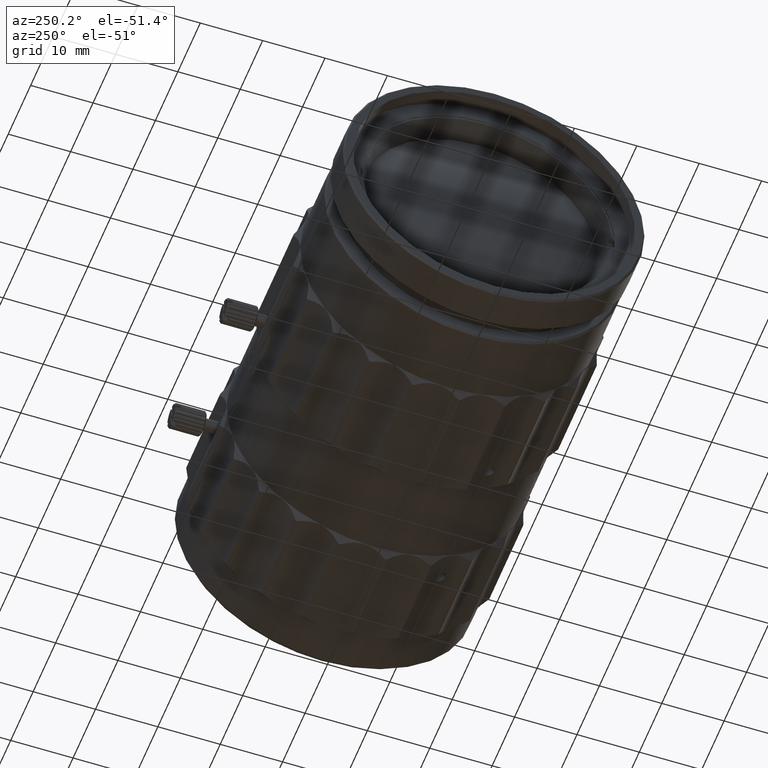
[diagram: clean part render]
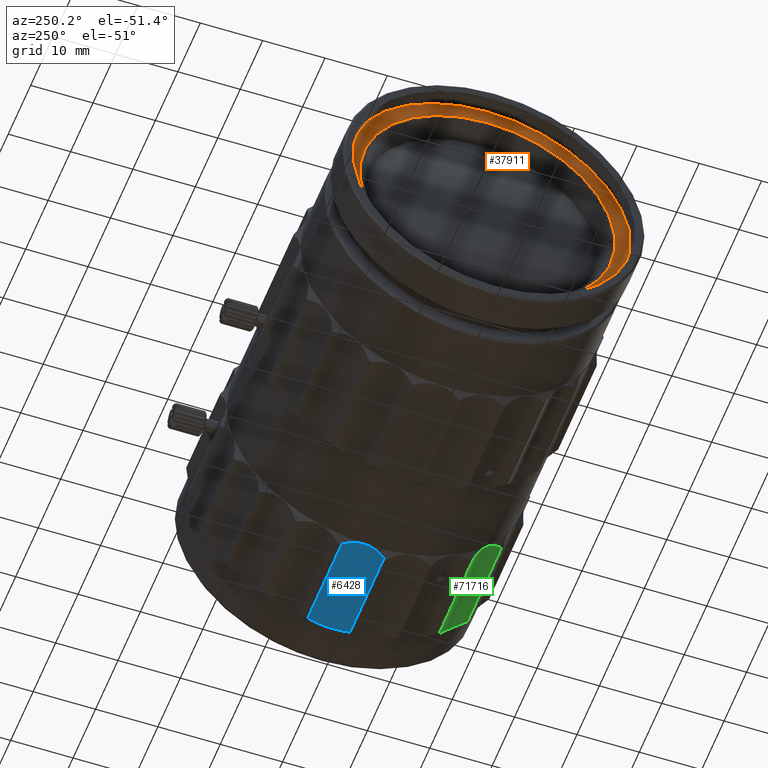
[diagram: same view with three faces highlighted in distinct colors, each labeled with its STEP entity id]
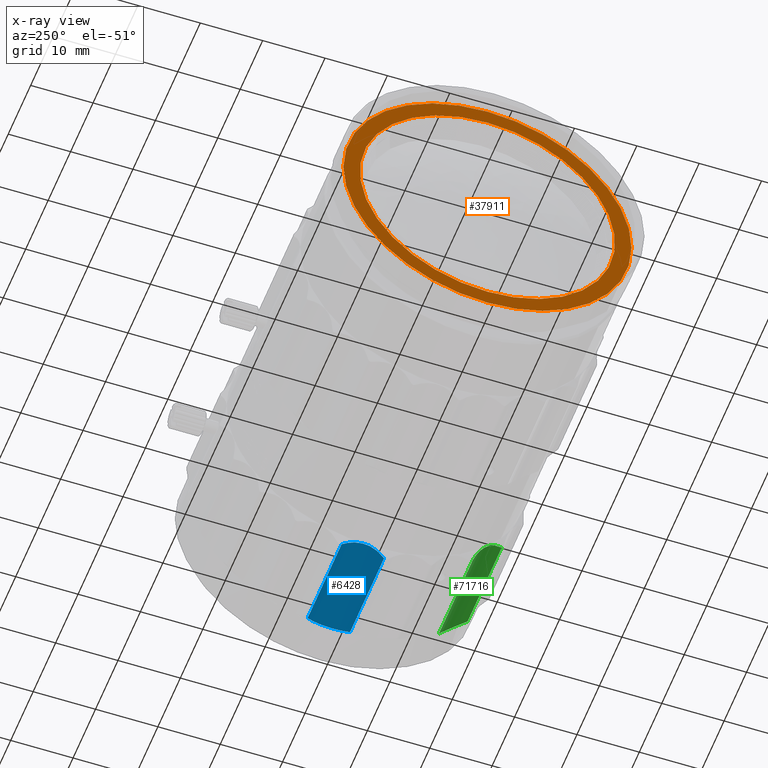
[diagram: x-ray of the same camera — body ghosted, the three highlighted faces saturated]
A machine part, auxiliary view with three faces highlighted in distinct colors.
The next image is the same camera in x-ray (body ghosted, the three faces saturated) — at least one of them is partly hidden behind the body in this view.
Their STEP definitions:

[orange] entity #37911 — the highlighted planar face has unit normal (1, 0, 0).
#4254 = VERTEX_POINT ( 'NONE', #54720 ) ;
#6498 = ORIENTED_EDGE ( 'NONE', *, *, #29854, .T. ) ;
#7162 = ORIENTED_EDGE ( 'NONE', *, *, #94831, .F. ) ;
#9021 = VERTEX_POINT ( 'NONE', #78979 ) ;
#14398 = AXIS2_PLACEMENT_3D ( 'NONE', #84401, #69110, #16922 ) ;
#16922 = DIRECTION ( 'NONE',  ( 0.000000000000000000, -1.000000000000000000, 0.000000000000000000 ) ) ;
#17253 = CARTESIAN_POINT ( 'NONE',  ( -1.250000000000000000, 0.000000000000000000, -5.831894326327889396E-19 ) ) ;
#17705 = CIRCLE ( 'NONE', #66433, 20.44999999999999929 ) ;
#19892 = EDGE_LOOP ( 'NONE', ( #39725, #7162 ) ) ;
#20978 = FACE_BOUND ( 'NONE', #19892, .T. ) ;
#22139 = DIRECTION ( 'NONE',  ( -1.060344422968708487E-17, 0.000000000000000000, 1.000000000000000000 ) ) ;
#25173 = VERTEX_POINT ( 'NONE', #55909 ) ;
#29854 = EDGE_CURVE ( 'NONE', #9021, #90376, #85011, .T. ) ;
#31068 = DIRECTION ( 'NONE',  ( -1.000000000000000000, -0.000000000000000000, -5.301722114843542433E-18 ) ) ;
#34645 = AXIS2_PLACEMENT_3D ( 'NONE', #59500, #45664, #89553 ) ;
#36674 = ORIENTED_EDGE ( 'NONE', *, *, #95646, .T. ) ;
#37911 = ADVANCED_FACE ( 'NONE', ( #20978, #86987 ), #57888, .F. ) ;
#39725 = ORIENTED_EDGE ( 'NONE', *, *, #78442, .F. ) ;
#45664 = DIRECTION ( 'NONE',  ( -1.000000000000000000, 4.693515898205647244E-18, 0.000000000000000000 ) ) ;
#47650 = CIRCLE ( 'NONE', #50795, 20.44999999999999929 ) ;
#50795 = AXIS2_PLACEMENT_3D ( 'NONE', #17253, #31068, #54652 ) ;
#54652 = DIRECTION ( 'NONE',  ( -1.060344422968708487E-17, 0.000000000000000000, 1.000000000000000000 ) ) ;
#54720 = CARTESIAN_POINT ( 'NONE',  ( -1.250000000000000222, 0.000000000000000000, 20.44999999999999929 ) ) ;
#55909 = CARTESIAN_POINT ( 'NONE',  ( -1.249999999999999778, 2.504402704256337014E-15, -20.44999999999999929 ) ) ;
#57888 = PLANE ( 'NONE',  #92572 ) ;
#59500 = CARTESIAN_POINT ( 'NONE',  ( -1.250000000000000000, 0.000000000000000000, 0.000000000000000000 ) ) ;
#65267 = DIRECTION ( 'NONE',  ( 1.000000000000000000, 0.000000000000000000, 0.000000000000000000 ) ) ;
#66433 = AXIS2_PLACEMENT_3D ( 'NONE', #76283, #90565, #22139 ) ;
#69110 = DIRECTION ( 'NONE',  ( -1.000000000000000000, 4.693515898205647244E-18, 0.000000000000000000 ) ) ;
#76283 = CARTESIAN_POINT ( 'NONE',  ( -1.250000000000000000, 0.000000000000000000, -5.831894326327889396E-19 ) ) ;
#78442 = EDGE_CURVE ( 'NONE', #4254, #25173, #47650, .T. ) ;
#78979 = CARTESIAN_POINT ( 'NONE',  ( -1.250000000000000000, 23.09999999999999432, 2.828934106030385314E-15 ) ) ;
#79101 = CARTESIAN_POINT ( 'NONE',  ( -1.250000000000000000, 24.02398711714999990, 24.02399999999999736 ) ) ;
#80409 = CIRCLE ( 'NONE', #14398, 23.09999999999999432 ) ;
#84401 = CARTESIAN_POINT ( 'NONE',  ( -1.250000000000000000, 0.000000000000000000, 0.000000000000000000 ) ) ;
#85011 = CIRCLE ( 'NONE', #34645, 23.09999999999999432 ) ;
#86987 = FACE_OUTER_BOUND ( 'NONE', #94642, .T. ) ;
#88445 = DIRECTION ( 'NONE',  ( 0.000000000000000000, -1.000000000000000000, 0.000000000000000000 ) ) ;
#89553 = DIRECTION ( 'NONE',  ( 0.000000000000000000, -1.000000000000000000, 0.000000000000000000 ) ) ;
#90376 = VERTEX_POINT ( 'NONE', #95792 ) ;
#90565 = DIRECTION ( 'NONE',  ( -1.000000000000000000, -0.000000000000000000, -5.301722114843542433E-18 ) ) ;
#92572 = AXIS2_PLACEMENT_3D ( 'NONE', #79101, #65267, #88445 ) ;
#94642 = EDGE_LOOP ( 'NONE', ( #36674, #6498 ) ) ;
#94831 = EDGE_CURVE ( 'NONE', #25173, #4254, #17705, .T. ) ;
#95646 = EDGE_CURVE ( 'NONE', #90376, #9021, #80409, .T. ) ;
#95792 = CARTESIAN_POINT ( 'NONE',  ( -1.250000000000000000, -23.09999999999999432, 0.000000000000000000 ) ) ;

[blue] entity #6428 — the highlighted cylindrical surface (partial cylindrical patch) has radius 9 mm, axis along (1, -0, -0).
#111 = CARTESIAN_POINT ( 'NONE',  ( 64.29889692406122492, 5.244373239944496667, -24.35895266666737058 ) ) ;
#3573 = CARTESIAN_POINT ( 'NONE',  ( 48.39267788785408442, 3.293660783382145407, -23.95293979896584347 ) ) ;
#5746 = VERTEX_POINT ( 'NONE', #78498 ) ;
#5759 = LINE ( 'NONE', #79162, #79725 ) ;
#6428 = ADVANCED_FACE ( 'NONE', ( #44713 ), #15183, .F. ) ;
#8437 = VERTEX_POINT ( 'NONE', #35964 ) ;
#9109 = VERTEX_POINT ( 'NONE', #111 ) ;
#9315 = ORIENTED_EDGE ( 'NONE', *, *, #88545, .T. ) ;
#9434 = CARTESIAN_POINT ( 'NONE',  ( 64.56942249015220625, -1.073049838548474133, -24.62762081052888874 ) ) ;
#10487 = CARTESIAN_POINT ( 'NONE',  ( 48.99586049858601200, 4.984264305403874218, -24.27456565961606216 ) ) ;
#11444 = CARTESIAN_POINT ( 'NONE',  ( 48.22833423474803993, 1.484966234386640105, -23.96829300653746841 ) ) ;
#12844 = CARTESIAN_POINT ( 'NONE',  ( 65.19354615063245717, 2.229121584460101335, -23.91990790645495579 ) ) ;
#14318 = CARTESIAN_POINT ( 'NONE',  ( 65.17004051061158520, 1.094357521499688568, -24.02210541422636325 ) ) ;
#15183 = CYLINDRICAL_SURFACE ( 'NONE', #96736, 9.000000000002836842 ) ;
#15189 = CARTESIAN_POINT ( 'NONE',  ( 49.13310307622317197, -1.555244733338385865, -24.86851904549911652 ) ) ;
#17234 = VERTEX_POINT ( 'NONE', #15189 ) ;
#17391 = CARTESIAN_POINT ( 'NONE',  ( 48.22768143848556122, 2.089861245403513479, -23.92248574963565133 ) ) ;
#17885 = CARTESIAN_POINT ( 'NONE',  ( 48.55073978160677939, 3.875698581293094414, -24.02578392938089280 ) ) ;
#18293 = CARTESIAN_POINT ( 'NONE',  ( 64.79255483098707202, -0.5579369178836397491, -24.42344516901292195 ) ) ;
#19212 = CARTESIAN_POINT ( 'NONE',  ( 64.95158376142097723, -1.104965382967684007E-14, -24.26441623857901320 ) ) ;
#19336 = CARTESIAN_POINT ( 'NONE',  ( 48.85891147112256760, -1.066515353867692584, -24.62435626770847463 ) ) ;
#27931 = DIRECTION ( 'NONE',  ( -1.000000000000000000, -0.000000000000000000, -0.000000000000000000 ) ) ;
#27987 = EDGE_CURVE ( 'NONE', #9109, #5746, #5759, .T. ) ;
#29582 = CARTESIAN_POINT ( 'NONE',  ( 64.29889692406122492, 5.244373239944496667, -24.35895266666737058 ) ) ;
#33614 = CARTESIAN_POINT ( 'NONE',  ( 49.13310307593903303, 5.244373239944160936, -24.35895266666781467 ) ) ;
#34541 = B_SPLINE_CURVE_WITH_KNOTS ( 'NONE', 3,
 ( #56253, #19336, #78440, #71044, #49342, #55278, #11444, #17391, #93690, #56735, #3573, #17885, #47896, #77964, #10487, #33614 ),
 .UNSPECIFIED., .F., .F.,
 ( 4, 2, 2, 2, 2, 2, 2, 4 ),
 ( 4.599440485587693841E-15, 0.001815626028214896871, 0.002723439042320046580, 0.003631252056425196724, 0.004539065070530346434, 0.005446878084635496144, 0.006354691098740646721, 0.007262504112845797298 ),
 .UNSPECIFIED. ) ;
#35020 = CARTESIAN_POINT ( 'NONE',  ( 65.06326702801776207, 0.4321192640539736618, -24.14987959222709080 ) ) ;
#35623 = ORIENTED_EDGE ( 'NONE', *, *, #68184, .F. ) ;
#35964 = CARTESIAN_POINT ( 'NONE',  ( 64.29889692406085544, -1.555244733339419927, -24.86851904549809689 ) ) ;
#35984 = CARTESIAN_POINT ( 'NONE',  ( 65.08188596980733109, 3.138511386333963760, -23.93337233574753853 ) ) ;
#40122 = B_SPLINE_CURVE_WITH_KNOTS ( 'NONE', 3,
 ( #66997, #65523, #35020, #58638, #14318, #89669, #96058, #12844, #73927, #35984, #44337, #72453, #97046, #29582 ),
 .UNSPECIFIED., .F., .F.,
 ( 4, 2, 2, 2, 2, 2, 4 ),
 ( 0.001791350465498357889, 0.002475244671398667273, 0.003159138877298977091, 0.003843033083199286909, 0.004526927289099596727, 0.005894715700900211158, 0.007262504112700827325 ),
 .UNSPECIFIED. ) ;
#43164 = B_SPLINE_CURVE_WITH_KNOTS ( 'NONE', 3,
 ( #62577, #9434, #18293, #86730 ),
 .UNSPECIFIED., .F., .F.,
 ( 4, 4 ),
 ( 1.301042606982605321E-18, 0.001791350465498357889 ),
 .UNSPECIFIED. ) ;
#44337 = CARTESIAN_POINT ( 'NONE',  ( 64.97536973543479633, 3.581102960968224558, -23.97820387418866872 ) ) ;
#44713 = FACE_OUTER_BOUND ( 'NONE', #93001, .T. ) ;
#45184 = CARTESIAN_POINT ( 'NONE',  ( 48.12623012207523487, 2.467016417317999810, -32.91969381914999815 ) ) ;
#45730 = ORIENTED_EDGE ( 'NONE', *, *, #86999, .F. ) ;
#47896 = CARTESIAN_POINT ( 'NONE',  ( 48.64827707637780918, 4.163067803805819977, -24.07640101275482536 ) ) ;
#49342 = CARTESIAN_POINT ( 'NONE',  ( 48.33237135749822500, 0.5983101334126608162, -24.11076477507830873 ) ) ;
#50747 = CARTESIAN_POINT ( 'NONE',  ( 56.71600786292999175, -1.555244733340888752, -24.86851904549421377 ) ) ;
#55278 = CARTESIAN_POINT ( 'NONE',  ( 48.24970390791437325, 1.186735852097691613, -24.00621101200239238 ) ) ;
#55381 = ORIENTED_EDGE ( 'NONE', *, *, #74197, .F. ) ;
#56253 = CARTESIAN_POINT ( 'NONE',  ( 49.13310307622317197, -1.555244733338385865, -24.86851904549911652 ) ) ;
#56735 = CARTESIAN_POINT ( 'NONE',  ( 48.33162978724019609, 2.998254237393549460, -23.93036868647755000 ) ) ;
#58638 = CARTESIAN_POINT ( 'NONE',  ( 65.14192165267243695, 0.8721034528362724414, -24.05929311518465497 ) ) ;
#62577 = CARTESIAN_POINT ( 'NONE',  ( 64.29889692406085544, -1.555244733339419927, -24.86851904549809689 ) ) ;
#65523 = CARTESIAN_POINT ( 'NONE',  ( 65.01229715402000409, 0.2130067972446330615, -24.20370284597997923 ) ) ;
#66008 = DIRECTION ( 'NONE',  ( 1.000000000000000000, 0.000000000000000000, 0.000000000000000000 ) ) ;
#66997 = CARTESIAN_POINT ( 'NONE',  ( 64.95158376142097723, -1.104965382967684007E-14, -24.26441623857901320 ) ) ;
#68184 = EDGE_CURVE ( 'NONE', #17234, #8437, #87725, .T. ) ;
#70726 = VERTEX_POINT ( 'NONE', #19212 ) ;
#71044 = CARTESIAN_POINT ( 'NONE',  ( 48.39429218105065189, 0.3060550889983212897, -24.17801628980648943 ) ) ;
#71330 = VECTOR ( 'NONE', #66008, 1000.000000000000000 ) ;
#71732 = DIRECTION ( 'NONE',  ( 0.000000000000000000, 1.000000000000000000, 0.000000000000000000 ) ) ;
#72453 = CARTESIAN_POINT ( 'NONE',  ( 64.68535293125266605, 4.443167970501582076, -24.12843359655183306 ) ) ;
#73927 = CARTESIAN_POINT ( 'NONE',  ( 65.17403817519065967, 2.459758497684091605, -23.91685164865964452 ) ) ;
#74197 = EDGE_CURVE ( 'NONE', #70726, #9109, #40122, .T. ) ;
#75501 = ORIENTED_EDGE ( 'NONE', *, *, #27987, .F. ) ;
#77964 = CARTESIAN_POINT ( 'NONE',  ( 48.87064466418706843, 4.716436552379332348, -24.20071870614339460 ) ) ;
#78440 = CARTESIAN_POINT ( 'NONE',  ( 48.63337644796342119, -0.5439899467104326591, -24.41789634839614465 ) ) ;
#78498 = CARTESIAN_POINT ( 'NONE',  ( 49.13310307593903303, 5.244373239944160936, -24.35895266666781467 ) ) ;
#79162 = CARTESIAN_POINT ( 'NONE',  ( 56.71600786292999175, 5.244373239944798648, -24.35895266666446091 ) ) ;
#79725 = VECTOR ( 'NONE', #27931, 1000.000000000000000 ) ;
#86521 = DIRECTION ( 'NONE',  ( 1.000000000000000000, -3.844161630822831754E-16, -2.880831731352431467E-17 ) ) ;
#86730 = CARTESIAN_POINT ( 'NONE',  ( 64.95158376142097723, -1.104965382967684007E-14, -24.26441623857901320 ) ) ;
#86999 = EDGE_CURVE ( 'NONE', #8437, #70726, #43164, .T. ) ;
#87725 = LINE ( 'NONE', #50747, #71330 ) ;
#88545 = EDGE_CURVE ( 'NONE', #17234, #5746, #34541, .T. ) ;
#89669 = CARTESIAN_POINT ( 'NONE',  ( 65.20306873444026508, 1.543523604797476967, -23.96433604333089562 ) ) ;
#93001 = EDGE_LOOP ( 'NONE', ( #35623, #9315, #75501, #55381, #45730 ) ) ;
#93690 = CARTESIAN_POINT ( 'NONE',  ( 48.24902095582982753, 2.397852589367348131, -23.91495082852120646 ) ) ;
#96058 = CARTESIAN_POINT ( 'NONE',  ( 65.20797933383981615, 1.770435287683991499, -23.94375291272228168 ) ) ;
#96736 = AXIS2_PLACEMENT_3D ( 'NONE', #45184, #86521, #71732 ) ;
#97046 = CARTESIAN_POINT ( 'NONE',  ( 64.50567828100406587, 4.852470963875635590, -24.23180801401614559 ) ) ;

[green] entity #71716 — the highlighted cylindrical surface (partial cylindrical patch) has radius 9 mm, axis along (1, 0, 0).
#241 = AXIS2_PLACEMENT_3D ( 'NONE', #84403, #92244, #17395 ) ;
#974 = CARTESIAN_POINT ( 'NONE',  ( 56.71869926913498716, -15.77478572794928802, -19.28777231652973256 ) ) ;
#2620 = VERTEX_POINT ( 'NONE', #75223 ) ;
#4279 = CARTESIAN_POINT ( 'NONE',  ( 64.29889692405996016, -15.77478572794930756, -19.28777231652972191 ) ) ;
#6034 = CARTESIAN_POINT ( 'NONE',  ( 65.20366576524969560, -17.81330715953853883, -16.10497694517255951 ) ) ;
#7514 = CARTESIAN_POINT ( 'NONE',  ( 48.39429218106356956, -18.71231438320294771, -15.31402729044359923 ) ) ;
#7976 = B_SPLINE_CURVE_WITH_KNOTS ( 'NONE', 3,
 ( #12932, #73518, #80909, #13426, #36556, #36058, #6034, #44901, #20816, #82374, #66090, #96138, #80412, #88785, #28695, #58711 ),
 .UNSPECIFIED., .F., .F.,
 ( 4, 2, 2, 2, 2, 2, 2, 4 ),
 ( 0.000000000000000000, 0.001815626028172797951, 0.002723439042259198552, 0.003631252056345598937, 0.004539065070431998888, 0.005446878084518400574, 0.006354691098604800525, 0.007262504112691201344 ),
 .UNSPECIFIED. ) ;
#12932 = CARTESIAN_POINT ( 'NONE',  ( 64.29889692406229074, -20.41267248043276794, -14.28932566300323614 ) ) ;
#13426 = CARTESIAN_POINT ( 'NONE',  ( 65.03770781896442088, -18.71231438310477202, -15.31402729051929157 ) ) ;
#17395 = DIRECTION ( 'NONE',  ( 0.000000000000000000, 0.000000000000000000, -1.000000000000000000 ) ) ;
#17733 = ORIENTED_EDGE ( 'NONE', *, *, #22622, .F. ) ;
#18835 = ORIENTED_EDGE ( 'NONE', *, *, #33389, .F. ) ;
#20816 = CARTESIAN_POINT ( 'NONE',  ( 65.18297904415945254, -17.20242733464911566, -16.78544202478895286 ) ) ;
#22622 = EDGE_CURVE ( 'NONE', #56904, #70569, #66005, .T. ) ;
#23739 = CARTESIAN_POINT ( 'NONE',  ( 48.33162978724269010, -16.84013726853349624, -17.26446786668689981 ) ) ;
#28695 = CARTESIAN_POINT ( 'NONE',  ( 64.43613950140579050, -15.87098453889148431, -19.03179650994107419 ) ) ;
#30634 = CARTESIAN_POINT ( 'NONE',  ( 48.24970390792226738, -18.02889622065095665, -15.89545250066250937 ) ) ;
#31096 = B_SPLINE_CURVE_WITH_KNOTS ( 'NONE', 3,
 ( #32083, #44918, #60199, #7514, #37549, #30634, #45877, #75963, #61146, #23739, #53759, #83839, #40915, #34029, #93615, #48304 ),
 .UNSPECIFIED., .F., .F.,
 ( 4, 2, 2, 2, 2, 2, 2, 4 ),
 ( 0.000000000000000000, 0.001815626028218118686, 0.002723439042327176294, 0.003631252056436230866, 0.004539065070545285005, 0.005446878084654339577, 0.006354691098763394150, 0.007262504112872448722 ),
 .UNSPECIFIED. ) ;
#32083 = CARTESIAN_POINT ( 'NONE',  ( 49.13310307633873464, -20.41267248043272886, -14.28932566300278850 ) ) ;
#33166 = ORIENTED_EDGE ( 'NONE', *, *, #37395, .F. ) ;
#33389 = EDGE_CURVE ( 'NONE', #54469, #2620, #51251, .T. ) ;
#33472 = ORIENTED_EDGE ( 'NONE', *, *, #73170, .T. ) ;
#34029 = CARTESIAN_POINT ( 'NONE',  ( 48.87064466419109721, -15.98023650023726638, -18.77635750200720466 ) ) ;
#36058 = CARTESIAN_POINT ( 'NONE',  ( 65.18229609208719921, -18.02889622057472963, -15.89545250073453175 ) ) ;
#36556 = CARTESIAN_POINT ( 'NONE',  ( 65.09962864251200187, -18.47751701982754113, -15.50059088668523444 ) ) ;
#37395 = EDGE_CURVE ( 'NONE', #70569, #54469, #7976, .T. ) ;
#37549 = CARTESIAN_POINT ( 'NONE',  ( 48.33237135750933788, -18.47751701991854389, -15.50059088661005546 ) ) ;
#40915 = CARTESIAN_POINT ( 'NONE',  ( 48.64827707638072241, -16.22806070880444906, -18.26620554186247247 ) ) ;
#44825 = DIRECTION ( 'NONE',  ( -1.000000000000000000, -0.000000000000000000, -0.000000000000000000 ) ) ;
#44901 = CARTESIAN_POINT ( 'NONE',  ( 65.20431856150604233, -17.40034779989091263, -16.54934261261735884 ) ) ;
#44918 = CARTESIAN_POINT ( 'NONE',  ( 48.85891147110133659, -19.91706058443232052, -14.51919675054043424 ) ) ;
#45877 = CARTESIAN_POINT ( 'NONE',  ( 48.22833423475457693, -17.81330715960726252, -16.10497694510305777 ) ) ;
#48304 = CARTESIAN_POINT ( 'NONE',  ( 49.13310307593999937, -15.77478572794922762, -19.28777231652971835 ) ) ;
#51251 = LINE ( 'NONE', #974, #72698 ) ;
#53759 = CARTESIAN_POINT ( 'NONE',  ( 48.39267788785637237, -16.67360114269997950, -17.50949888783620523 ) ) ;
#54469 = VERTEX_POINT ( 'NONE', #4279 ) ;
#56904 = VERTEX_POINT ( 'NONE', #96557 ) ;
#58711 = CARTESIAN_POINT ( 'NONE',  ( 64.29889692405996016, -15.77478572794930756, -19.28777231652972191 ) ) ;
#60199 = CARTESIAN_POINT ( 'NONE',  ( 48.63337644798204451, -19.42985449886706917, -14.79899798286715296 ) ) ;
#61146 = CARTESIAN_POINT ( 'NONE',  ( 48.24902095583335182, -17.20242733469570240, -16.78544202473105074 ) ) ;
#62180 = FACE_OUTER_BOUND ( 'NONE', #79305, .T. ) ;
#66005 = LINE ( 'NONE', #87722, #68612 ) ;
#66090 = CARTESIAN_POINT ( 'NONE',  ( 65.03932211213162873, -16.67360114267196280, -17.50949888787932807 ) ) ;
#68612 = VECTOR ( 'NONE', #96050, 1000.000000000000000 ) ;
#70569 = VERTEX_POINT ( 'NONE', #96712 ) ;
#71716 = ADVANCED_FACE ( 'NONE', ( #62180 ), #85841, .F. ) ;
#72698 = VECTOR ( 'NONE', #44825, 1000.000000000000000 ) ;
#73170 = EDGE_CURVE ( 'NONE', #56904, #2620, #31096, .T. ) ;
#73518 = CARTESIAN_POINT ( 'NONE',  ( 64.57308852896377971, -19.91706058429864967, -14.51919675061318848 ) ) ;
#75223 = CARTESIAN_POINT ( 'NONE',  ( 49.13310307593999937, -15.77478572794922762, -19.28777231652971835 ) ) ;
#75963 = CARTESIAN_POINT ( 'NONE',  ( 48.22768143848988842, -17.40034779994455505, -16.54934261255517214 ) ) ;
#79305 = EDGE_LOOP ( 'NONE', ( #17733, #33472, #18835, #33166 ) ) ;
#80412 = CARTESIAN_POINT ( 'NONE',  ( 64.78372292360923268, -16.22806070879178009, -18.26620554188706080 ) ) ;
#80909 = CARTESIAN_POINT ( 'NONE',  ( 64.79862355206748248, -19.42985449874674586, -14.79899798294305846 ) ) ;
#82374 = CARTESIAN_POINT ( 'NONE',  ( 65.10037021274614233, -16.84013726849957493, -17.26446786673543698 ) ) ;
#83839 = CARTESIAN_POINT ( 'NONE',  ( 48.55073978160930182, -16.36765842074546029, -18.00997198044069947 ) ) ;
#84403 = CARTESIAN_POINT ( 'NONE',  ( 48.12613349390124284, -24.19949680289999350, -22.45388085913999987 ) ) ;
#85841 = CYLINDRICAL_SURFACE ( 'NONE', #241, 8.999999999999268141 ) ;
#87722 = CARTESIAN_POINT ( 'NONE',  ( 56.71869926913498716, -20.41267248043187976, -14.28932566300403550 ) ) ;
#88785 = CARTESIAN_POINT ( 'NONE',  ( 64.56135533580275876, -15.98023650023190001, -18.77635750201972797 ) ) ;
#92244 = DIRECTION ( 'NONE',  ( 1.000000000000000000, 0.000000000000000000, 0.000000000000000000 ) ) ;
#93615 = CARTESIAN_POINT ( 'NONE',  ( 48.99586049859076553, -15.87098453889386818, -19.03179650993472194 ) ) ;
#96050 = DIRECTION ( 'NONE',  ( 1.000000000000000000, 0.000000000000000000, 0.000000000000000000 ) ) ;
#96138 = CARTESIAN_POINT ( 'NONE',  ( 64.88126021837932456, -16.36765842072824739, -18.00997198047158321 ) ) ;
#96557 = CARTESIAN_POINT ( 'NONE',  ( 49.13310307633873464, -20.41267248043272886, -14.28932566300278850 ) ) ;
#96712 = CARTESIAN_POINT ( 'NONE',  ( 64.29889692406229074, -20.41267248043276794, -14.28932566300323614 ) ) ;